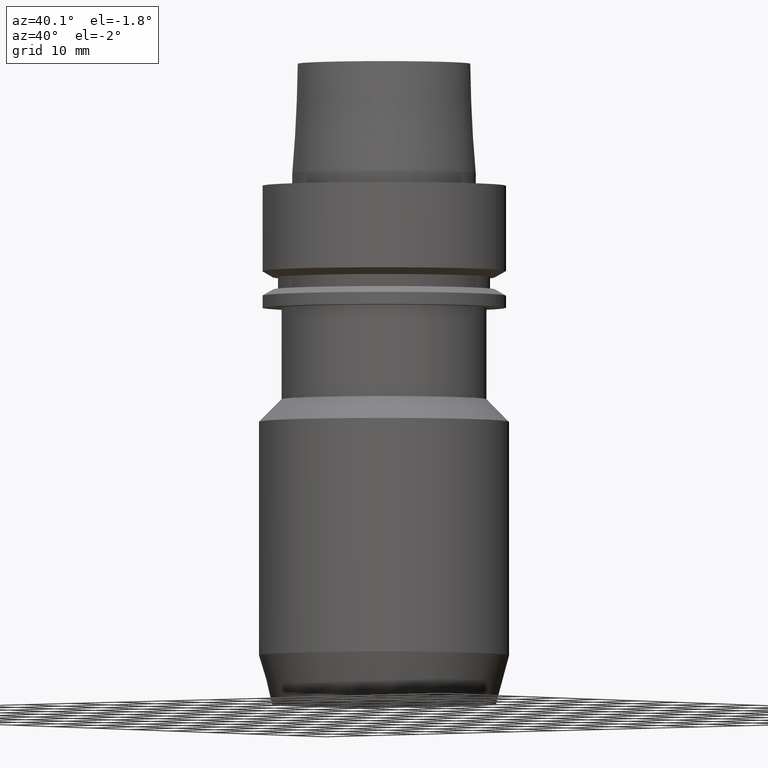
[diagram: clean part render]
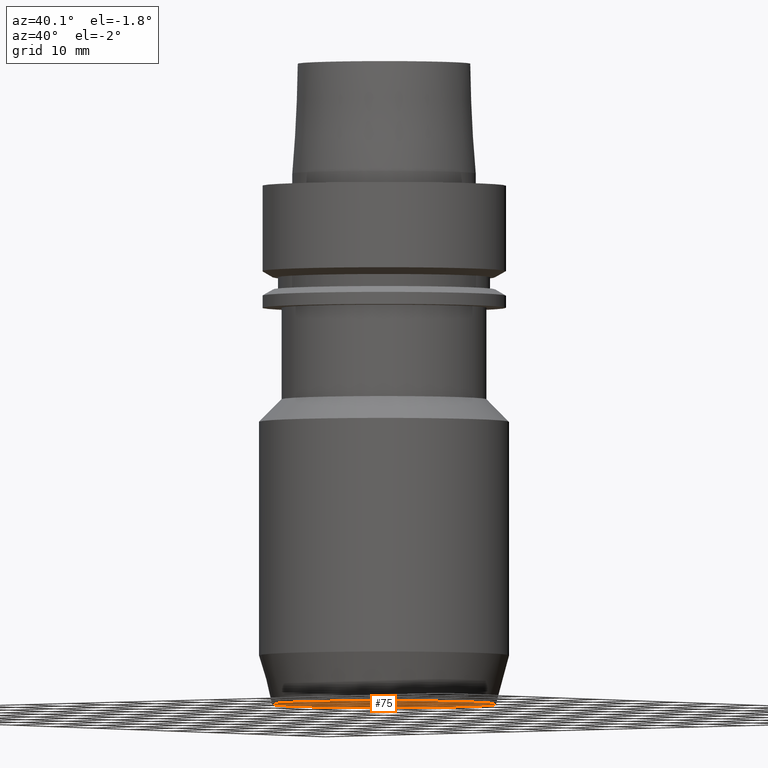
[diagram: same view with one face highlighted and labeled with its STEP entity id]
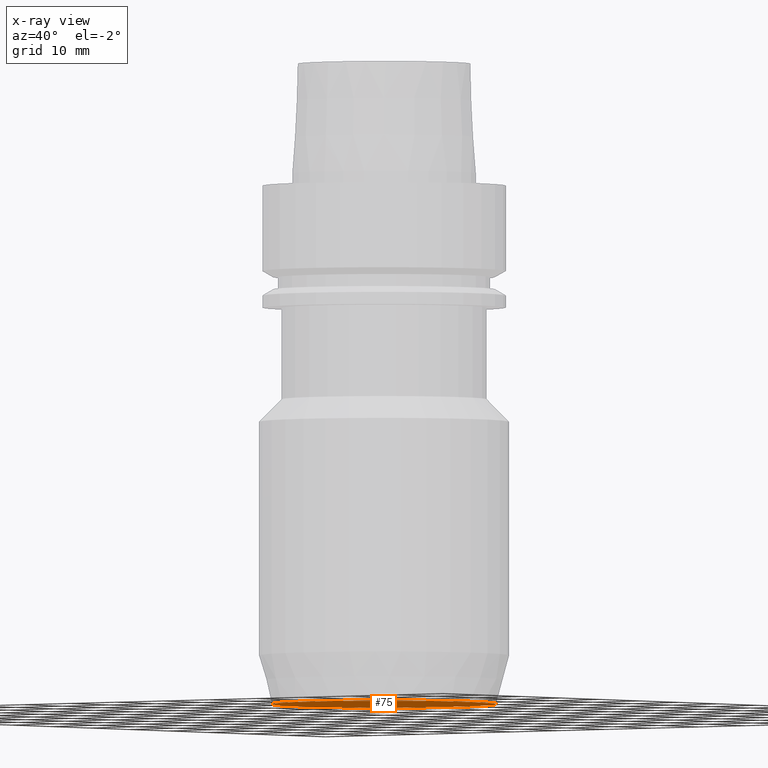
[diagram: x-ray of the same camera — body ghosted, the highlighted face saturated]
A machine part, auxiliary view. The second image highlights one B-rep face of the part: STEP entity #75.
The next image is the same camera in x-ray: the body ghosted, the highlighted face saturated — about 0% of this face is hidden behind the body in this view.
In plain terms, the highlighted planar face has unit normal (0, 0, -1).
Its self-contained STEP definition (entity closure, byte-faithful):
#75=ADVANCED_FACE('',(#93),#94,.T.);
#93=FACE_OUTER_BOUND('',#142,.T.);
#94=PLANE('',#143);
#142=EDGE_LOOP('',(#191));
#143=AXIS2_PLACEMENT_3D('',#192,#193,#194);
#191=ORIENTED_EDGE('',*,*,#274,.T.);
#192=CARTESIAN_POINT('',(5.20474889637625E-015,9.17820323227919,-85.0));
#193=DIRECTION('',(6.12323399573677E-017,1.22464679914735E-016,-1.0));
#194=DIRECTION('',(-1.23259516440783E-032,1.0,1.22464679914735E-016));
#274=EDGE_CURVE('',#290,#290,#291,.T.);
#290=VERTEX_POINT('',#322);
#291=CIRCLE('',#323,18.3564064645584);
#322=CARTESIAN_POINT('',(5.20474889637625E-015,18.3564064645584,-85.0));
#323=AXIS2_PLACEMENT_3D('',#354,#355,#356);
#354=CARTESIAN_POINT('',(5.20474889637625E-015,1.04094977927525E-014,-85.0));
#355=DIRECTION('',(6.12323399573677E-017,1.22464679914735E-016,-1.0));
#356=DIRECTION('',(-1.23259516440783E-032,1.0,1.22464679914735E-016));